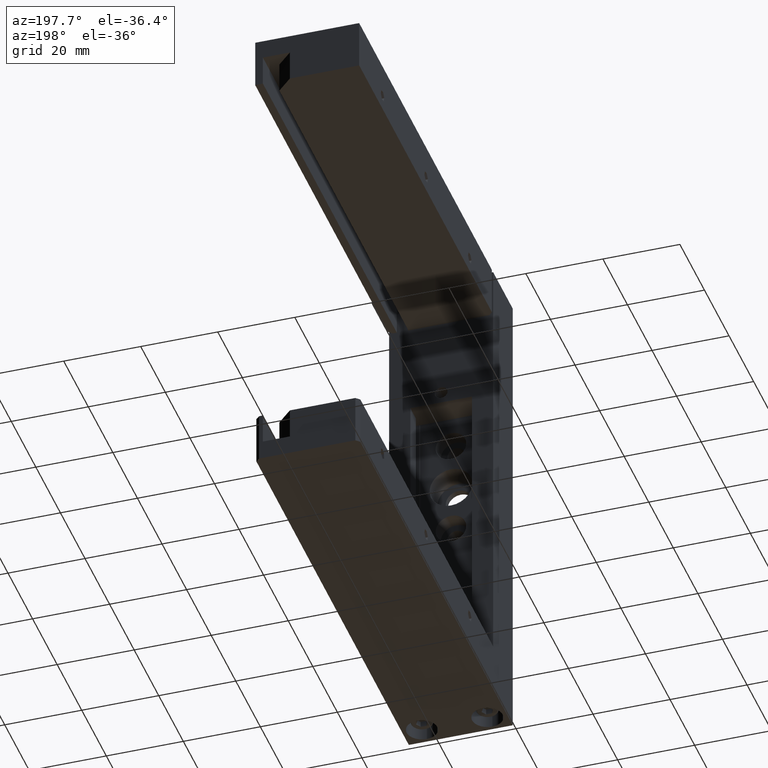
[diagram: clean part render]
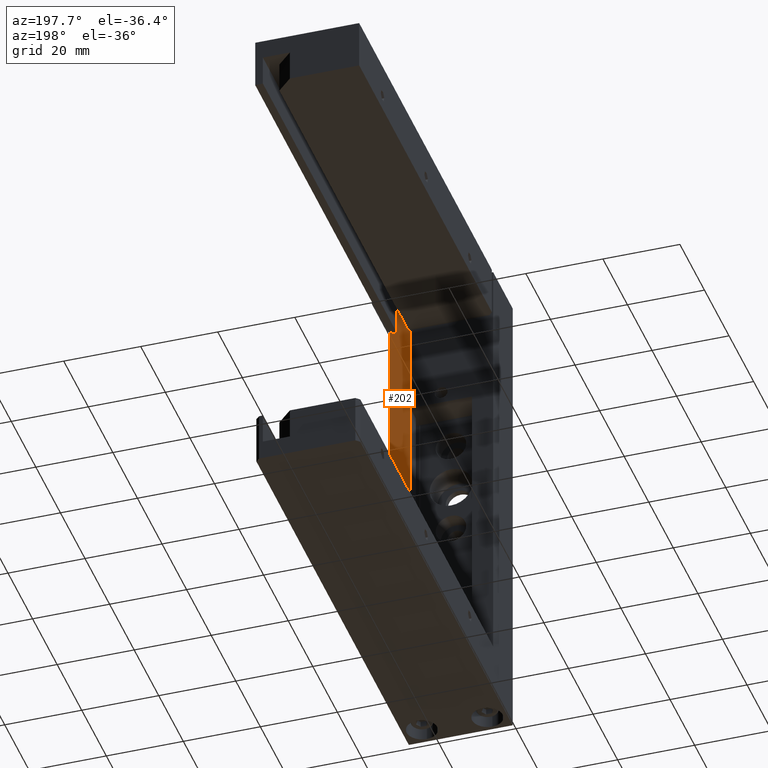
[diagram: same view with one face highlighted and labeled with its STEP entity id]
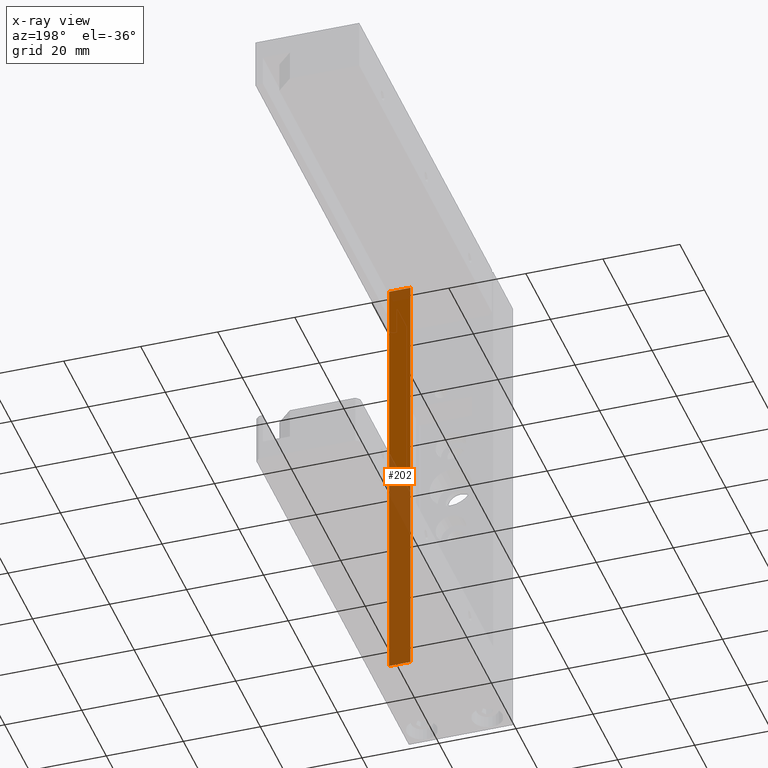
[diagram: x-ray of the same camera — body ghosted, the highlighted face saturated]
A machine part, auxiliary view. The second image highlights one B-rep face of the part: STEP entity #202.
The next image is the same camera in x-ray: the body ghosted, the highlighted face saturated — about 54% of this face is hidden behind the body in this view.
In plain terms, the highlighted planar face has unit normal (0, -1, 0).
Its self-contained STEP definition (entity closure, byte-faithful):
#202 = ADVANCED_FACE ( 'NONE', ( #1810 ), #4149, .F. ) ;
#439 = DIRECTION ( 'NONE',  ( 0.0000000000000000000, -1.000000000000000000, 0.0000000000000000000 ) ) ;
#477 = VECTOR ( 'NONE', #2687, 1000.000000000000000 ) ;
#785 = VERTEX_POINT ( 'NONE', #6199 ) ;
#856 = VECTOR ( 'NONE', #7914, 1000.000000000000000 ) ;
#1057 = VECTOR ( 'NONE', #6141, 1000.000000000000000 ) ;
#1067 = EDGE_CURVE ( 'NONE', #785, #7773, #5971, .T. ) ;
#1090 = CARTESIAN_POINT ( 'NONE',  ( 8.431880108991826700, 14.11989100817438500, 57.50000000000000000 ) ) ;
#1632 = CARTESIAN_POINT ( 'NONE',  ( 2.931880108991827200, 14.11989100817438500, 57.50000000000000000 ) ) ;
#1810 = FACE_OUTER_BOUND ( 'NONE', #8046, .T. ) ;
#2113 = CARTESIAN_POINT ( 'NONE',  ( 2.931880108991827200, 14.11989100817438500, 57.50000000000000000 ) ) ;
#2135 = LINE ( 'NONE', #2113, #477 ) ;
#2655 = CARTESIAN_POINT ( 'NONE',  ( 8.431880108991826700, 14.11989100817438500, 57.50000000000000000 ) ) ;
#2687 = DIRECTION ( 'NONE',  ( -0.0000000000000000000, -0.0000000000000000000, -1.000000000000000000 ) ) ;
#2800 = CARTESIAN_POINT ( 'NONE',  ( 2.931880108991827200, 14.11989100817438500, -57.50000000000000000 ) ) ;
#2889 = AXIS2_PLACEMENT_3D ( 'NONE', #1090, #439, #5544 ) ;
#3130 = LINE ( 'NONE', #5306, #6732 ) ;
#3235 = ORIENTED_EDGE ( 'NONE', *, *, #5348, .F. ) ;
#4149 = PLANE ( 'NONE',  #2889 ) ;
#4427 = LINE ( 'NONE', #4831, #1057 ) ;
#4574 = ORIENTED_EDGE ( 'NONE', *, *, #7794, .T. ) ;
#4831 = CARTESIAN_POINT ( 'NONE',  ( 8.431880108991826700, 14.11989100817438500, 57.50000000000000000 ) ) ;
#5306 = CARTESIAN_POINT ( 'NONE',  ( 8.431880108991826700, 14.11989100817438500, -57.50000000000000000 ) ) ;
#5348 = EDGE_CURVE ( 'NONE', #7773, #6882, #2135, .T. ) ;
#5544 = DIRECTION ( 'NONE',  ( 0.0000000000000000000, -0.0000000000000000000, -1.000000000000000000 ) ) ;
#5968 = ORIENTED_EDGE ( 'NONE', *, *, #6242, .T. ) ;
#5971 = LINE ( 'NONE', #2655, #856 ) ;
#6120 = ORIENTED_EDGE ( 'NONE', *, *, #1067, .F. ) ;
#6141 = DIRECTION ( 'NONE',  ( -0.0000000000000000000, -0.0000000000000000000, -1.000000000000000000 ) ) ;
#6199 = CARTESIAN_POINT ( 'NONE',  ( 8.431880108991826700, 14.11989100817438500, 57.50000000000000000 ) ) ;
#6242 = EDGE_CURVE ( 'NONE', #7212, #6882, #3130, .T. ) ;
#6732 = VECTOR ( 'NONE', #7292, 1000.000000000000000 ) ;
#6882 = VERTEX_POINT ( 'NONE', #2800 ) ;
#7212 = VERTEX_POINT ( 'NONE', #8117 ) ;
#7292 = DIRECTION ( 'NONE',  ( -1.000000000000000000, 0.0000000000000000000, 0.0000000000000000000 ) ) ;
#7773 = VERTEX_POINT ( 'NONE', #1632 ) ;
#7794 = EDGE_CURVE ( 'NONE', #785, #7212, #4427, .T. ) ;
#7914 = DIRECTION ( 'NONE',  ( -1.000000000000000000, 0.0000000000000000000, 0.0000000000000000000 ) ) ;
#8046 = EDGE_LOOP ( 'NONE', ( #5968, #3235, #6120, #4574 ) ) ;
#8117 = CARTESIAN_POINT ( 'NONE',  ( 8.431880108991826700, 14.11989100817438500, -57.50000000000000000 ) ) ;